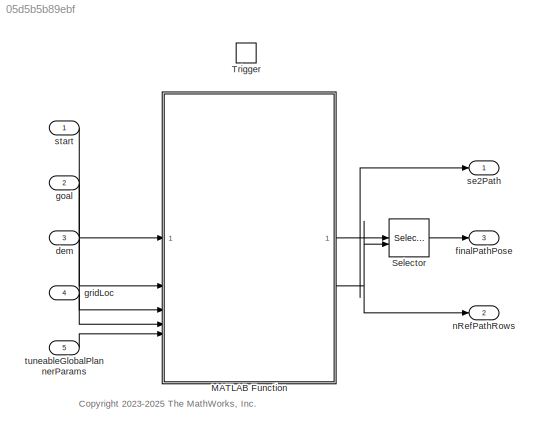
MODEL slx_05d5b5b89ebf
KIND model
CONFIG AbsTol = auto
CONFIG EnableMultiTasking = off
CONFIG FixedStep = auto
CONFIG MaxStep = auto
CONFIG MinStep = auto
CONFIG RelTol = 1e-3
CONFIG SampleTimeConstraint = Unconstrained
CONFIG SolverName = FixedStepAuto
CONFIG StartTime = 0.0
CONFIG StopTime = .1
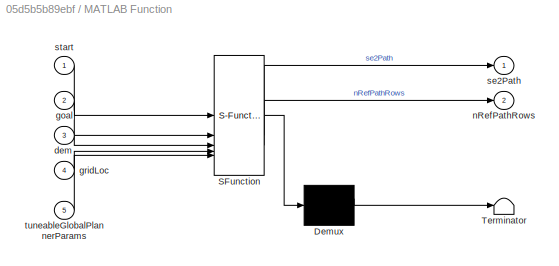
BLOCK [SubSystem] MATLAB Function
  ErrorFcn = Stateflow.Translate.translate
  LibrarySourceBlock = simulink/User-Defined\nFunctions/MATLAB Function
  PermitHierarchicalResolution = ExplicitOnly
  SFBlockType = MATLAB Function
  TreatAsAtomicUnit = on
BLOCK [Demux] MATLAB Function/ Demux 
  Outputs = 1
BLOCK [S-Function] MATLAB Function/ SFunction 
  EnableBusSupport = on
  FunctionName = sf_sfun
  Parameters = analyticExpansionInterval,length,nRowOutput,numCircles,numMotionPrimitives,resolution,width
  PortCounts = [5 3]
  SFcnIsStateOwnerBlock = off
  SFunctionDeploymentMode = off
  Tag = Stateflow S-Function 2
BLOCK [Terminator] MATLAB Function/ Terminator 
BLOCK [Inport] MATLAB Function/dem
  Port = 3
BLOCK [Inport] MATLAB Function/goal
  Port = 2
BLOCK [Inport] MATLAB Function/gridLoc
  Port = 4
BLOCK [Outport] MATLAB Function/nRefPathRows
  Port = 2
BLOCK [Outport] MATLAB Function/se2Path
BLOCK [Inport] MATLAB Function/start
BLOCK [Inport] MATLAB Function/tuneableGlobalPlannerParams
  Port = 5
BLOCK [Selector] Selector
  IndexOptions = Index vector (port),Select all
  Indices = [1 3],1
  InputPortWidth = 3
  NumberOfDimensions = 2
  OutputSizes = 1,1
BLOCK [TriggerPort] Trigger
  PortDimensions = 1
  StatesWhenEnabling = held
  TriggerType = function-call
  VariantControl = (inherit)
BLOCK [Inport] dem
  Port = 3
  PortDimensions = [1201 1201]
BLOCK [Outport] finalPathPose
  Port = 3
BLOCK [Inport] goal
  Port = 2
  PortDimensions = [1 3]
  VarSizeSig = No
BLOCK [Inport] gridLoc
  Port = 4
  PortDimensions = [1 2]
BLOCK [Outport] nRefPathRows
  Port = 2
BLOCK [Outport] se2Path
BLOCK [Inport] start
  Interpolate = off
  PortDimensions = [1 3]
  VarSizeSig = No
BLOCK [Inport] tuneableGlobalPlannerParams
  OutDataTypeStr = Bus: fsp_tunable_bus
  Port = 5
ANNOTATION (root): <copyright redacted>
NET MATLAB Function:1 -> Selector:1, se2Path:1
NET MATLAB Function:2 -> Selector:2, nRefPathRows:1
LINE Selector:1 -> finalPathPose:1
LINE dem:1 -> MATLAB Function:3
LINE goal:1 -> MATLAB Function:2
LINE gridLoc:1 -> MATLAB Function:4
LINE start:1 -> MATLAB Function:1
LINE tuneableGlobalPlannerParams:1 -> MATLAB Function:5
note: NET lines group one-source signal fan-out (src -> all destinations, sorted); 1:1 wires keep LINE
CHART MATLAB Function states=1 transitions=1
  STATE_LABEL 'eML_blk_kernel()'
  STATE_LABEL "SCRIPT:\nfunction [se2Path,nRefPathRows] = TerrainAwarePlannerBlock(start,goal,dem,gridLoc,tuneableGlobalPlannerParams,length,width,resolution,numMotionPrimitives,analyticExpansionInterval,numCircles,nRowOutput)\n    fixedParams = struct( ...\n        'Length',coder.const(length), ...\n        'Width',coder.const(width), ...\n        'NumMotionPrimitives',numMotionPrimitives, ...\n        'AnalyticExpan...<+552ch>"
CHART  states=0 transitions=0
